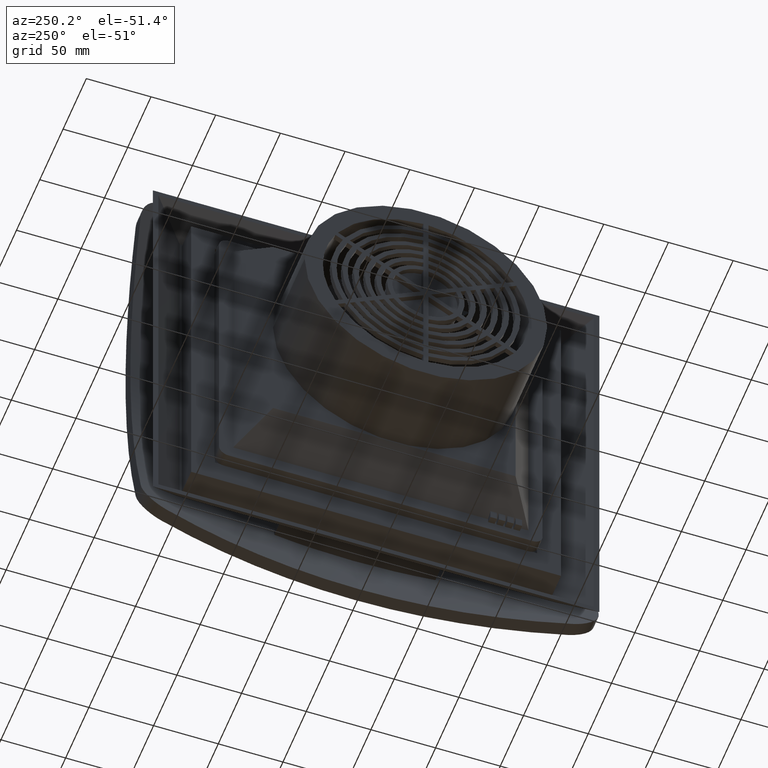
[diagram: clean part render]
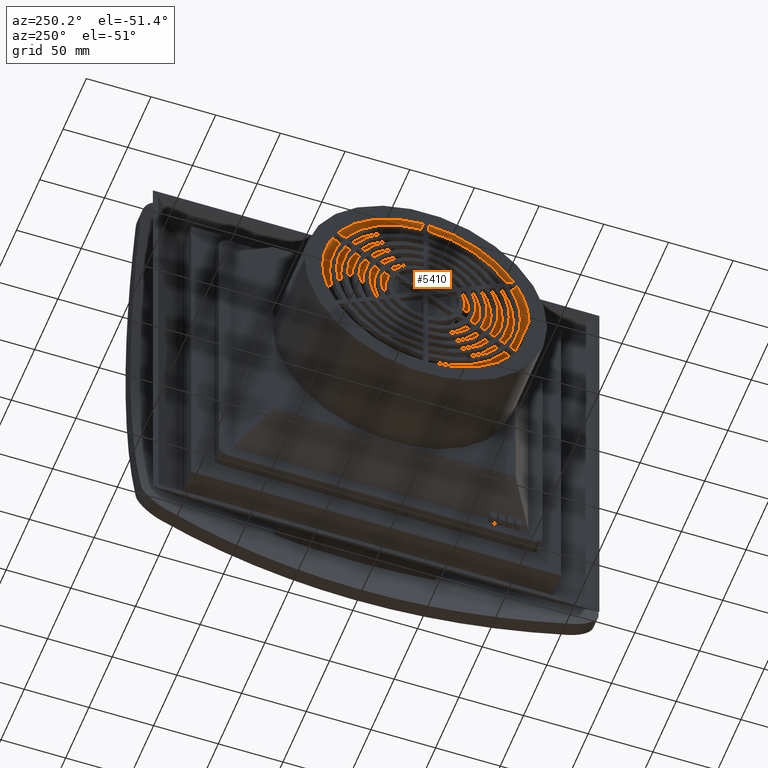
[diagram: same view with one face highlighted and labeled with its STEP entity id]
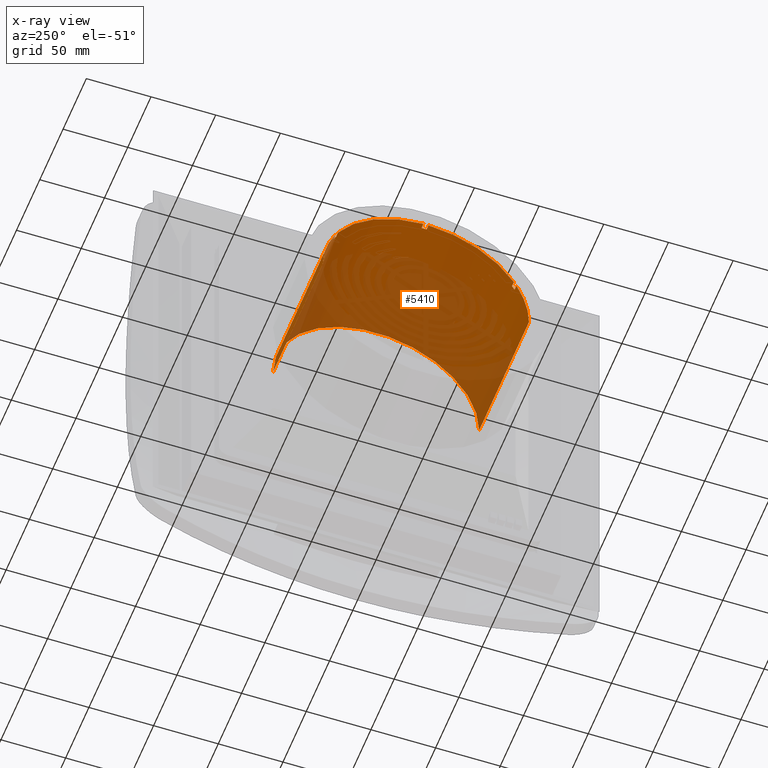
[diagram: x-ray of the same camera — body ghosted, the highlighted face saturated]
A machine part, auxiliary view. The second image highlights one B-rep face of the part: STEP entity #5410.
The next image is the same camera in x-ray: the body ghosted, the highlighted face saturated — about 60% of this face is hidden behind the body in this view.
In plain terms, the highlighted cylindrical surface (partial cylindrical patch) has radius 79.6875 mm, axis along (-1, 0, -0).
Its self-contained STEP definition (entity closure, byte-faithful):
#47 = EDGE_CURVE ( 'NONE', #208, #11461, #3389, .T. ) ;
#119 = CARTESIAN_POINT ( 'NONE',  ( 3.286904682269551315E-16, 3.137303149606299524, 3.842088260120264997E-16 ) ) ;
#154 = CARTESIAN_POINT ( 'NONE',  ( -2.106299212598425008, 3.137303149606299524, 2.552394560720713197E-16 ) ) ;
#177 = CIRCLE ( 'NONE', #6777, 3.137303149606299524 ) ;
#208 = VERTEX_POINT ( 'NONE', #8974 ) ;
#830 = ORIENTED_EDGE ( 'NONE', *, *, #9070, .F. ) ;
#878 = DIRECTION ( 'NONE',  ( 1.000000000000000000, -1.224606353822379970E-16, 6.123031769111889989E-17 ) ) ;
#884 = DIRECTION ( 'NONE',  ( 1.000000000000000000, -1.224606353822379970E-16, 6.123031769111889989E-17 ) ) ;
#1106 = ORIENTED_EDGE ( 'NONE', *, *, #12026, .F. ) ;
#1137 = EDGE_CURVE ( 'NONE', #6699, #5232, #13970, .T. ) ;
#1386 = AXIS2_PLACEMENT_3D ( 'NONE', #6720, #9345, #10373 ) ;
#1394 = ORIENTED_EDGE ( 'NONE', *, *, #1137, .F. ) ;
#1400 = EDGE_LOOP ( 'NONE', ( #8145, #15722, #13785, #12770, #11476, #3122, #1106, #13016, #13456, #10707, #1987, #6585, #1394, #14171, #1865, #830 ) ) ;
#1467 = DIRECTION ( 'NONE',  ( -1.000000000000000000, 1.224606353822379970E-16, -6.123031769111889989E-17 ) ) ;
#1510 = AXIS2_PLACEMENT_3D ( 'NONE', #15658, #7228, #7154 ) ;
#1528 = CARTESIAN_POINT ( 'NONE',  ( -4.212598425196850016, -0.07874015748031444606, 3.136314882171364893 ) ) ;
#1567 = EDGE_CURVE ( 'NONE', #5232, #208, #12856, .T. ) ;
#1865 = ORIENTED_EDGE ( 'NONE', *, *, #14821, .T. ) ;
#1987 = ORIENTED_EDGE ( 'NONE', *, *, #47, .F. ) ;
#2011 = LINE ( 'NONE', #11765, #15589 ) ;
#2057 = CARTESIAN_POINT ( 'NONE',  ( -2.106299212598425008, 2.755498440967758533, 1.499966464409741462 ) ) ;
#2212 = CARTESIAN_POINT ( 'NONE',  ( -4.212598425196850016, 5.158774797598209172E-16, -2.579387398799102614E-16 ) ) ;
#2226 = CARTESIAN_POINT ( 'NONE',  ( -4.055118110236221263, 4.965923403295472565E-16, -2.482961701647734310E-16 ) ) ;
#2239 = CARTESIAN_POINT ( 'NONE',  ( -4.212598425196850904, 5.158774797598210158E-16, -2.579387398799103107E-16 ) ) ;
#2425 = CARTESIAN_POINT ( 'NONE',  ( -2.106299212598425008, 2.676758283487442380, 1.636348417761623208 ) ) ;
#2598 = DIRECTION ( 'NONE',  ( -1.000000000000000000, 1.224606353822379970E-16, -6.123031769111889989E-17 ) ) ;
#3122 = ORIENTED_EDGE ( 'NONE', *, *, #13767, .F. ) ;
#3140 = DIRECTION ( 'NONE',  ( 1.000000000000000000, -1.224606353822379970E-16, 6.123031769111889989E-17 ) ) ;
#3218 = VERTEX_POINT ( 'NONE', #119 ) ;
#3353 = CARTESIAN_POINT ( 'NONE',  ( -2.106299212598425008, 2.579387398799102121E-16, -1.289693699399551060E-16 ) ) ;
#3360 = CARTESIAN_POINT ( 'NONE',  ( -4.055118110236221263, 0.07874015748031547302, 3.136314882171364893 ) ) ;
#3389 = CIRCLE ( 'NONE', #1510, 3.137303149606299524 ) ;
#3581 = DIRECTION ( 'NONE',  ( -1.224606353822379970E-16, -1.000000000000000000, 0.000000000000000000 ) ) ;
#3589 = VECTOR ( 'NONE', #15321, 39.37007874015748143 ) ;
#3628 = EDGE_CURVE ( 'NONE', #5761, #13140, #7104, .T. ) ;
#3639 = DIRECTION ( 'NONE',  ( 1.000000000000000000, -1.224606353822379970E-16, 6.123031769111889989E-17 ) ) ;
#3659 = CARTESIAN_POINT ( 'NONE',  ( -4.212598425196850904, 5.158774797598211144E-16, -2.579387398799103107E-16 ) ) ;
#3791 = CARTESIAN_POINT ( 'NONE',  ( -2.106299212598425452, -0.07874015748031458484, 3.136314882171365337 ) ) ;
#3817 = DIRECTION ( 'NONE',  ( 1.000000000000000000, -1.224606353822379970E-16, 6.123031769111889989E-17 ) ) ;
#3850 = LINE ( 'NONE', #2425, #10343 ) ;
#3921 = VERTEX_POINT ( 'NONE', #12008 ) ;
#4456 = LINE ( 'NONE', #154, #9775 ) ;
#4631 = DIRECTION ( 'NONE',  ( 1.000000000000000000, -1.224606353822379970E-16, 6.123031769111889989E-17 ) ) ;
#4697 = DIRECTION ( 'NONE',  ( -1.000000000000000000, 1.224606353822379970E-16, -6.123031769111889989E-17 ) ) ;
#4966 = AXIS2_PLACEMENT_3D ( 'NONE', #9618, #878, #3581 ) ;
#4974 = AXIS2_PLACEMENT_3D ( 'NONE', #3353, #4697, #7319 ) ;
#4981 = LINE ( 'NONE', #3791, #8494 ) ;
#5077 = VERTEX_POINT ( 'NONE', #12011 ) ;
#5172 = CARTESIAN_POINT ( 'NONE',  ( -4.212598425196850904, 3.137303149606299968, 1.262700861321161397E-16 ) ) ;
#5232 = VERTEX_POINT ( 'NONE', #15032 ) ;
#5410 = ADVANCED_FACE ( 'NONE', ( #10570 ), #9391, .F. ) ;
#5562 = AXIS2_PLACEMENT_3D ( 'NONE', #2226, #5802, #8581 ) ;
#5583 = AXIS2_PLACEMENT_3D ( 'NONE', #12907, #3140, #12824 ) ;
#5761 = VERTEX_POINT ( 'NONE', #10402 ) ;
#5802 = DIRECTION ( 'NONE',  ( 1.000000000000000000, -1.224606353822379970E-16, 6.123031769111889989E-17 ) ) ;
#5979 = LINE ( 'NONE', #7573, #8310 ) ;
#6500 = VERTEX_POINT ( 'NONE', #11684 ) ;
#6529 = CARTESIAN_POINT ( 'NONE',  ( -4.212598425196850016, -2.676758283487440604, 1.636348417761626095 ) ) ;
#6585 = ORIENTED_EDGE ( 'NONE', *, *, #1567, .F. ) ;
#6611 = CIRCLE ( 'NONE', #5583, 3.137303149606299524 ) ;
#6699 = VERTEX_POINT ( 'NONE', #5172 ) ;
#6720 = CARTESIAN_POINT ( 'NONE',  ( -4.055118110236221263, 4.965923403295473551E-16, -2.482961701647734803E-16 ) ) ;
#6777 = AXIS2_PLACEMENT_3D ( 'NONE', #2212, #3639, #8484 ) ;
#7104 = LINE ( 'NONE', #10905, #12760 ) ;
#7108 = CARTESIAN_POINT ( 'NONE',  ( -4.055118110236221263, -2.676758283487440604, 1.636348417761626095 ) ) ;
#7154 = DIRECTION ( 'NONE',  ( -1.741526313137500431E-16, -1.000000000000000000, 0.000000000000000000 ) ) ;
#7228 = DIRECTION ( 'NONE',  ( 1.000000000000000000, -1.224606353822379970E-16, 6.123031769111889989E-17 ) ) ;
#7319 = DIRECTION ( 'NONE',  ( -8.707631565687502157E-17, -1.000000000000000000, 0.000000000000000000 ) ) ;
#7461 = DIRECTION ( 'NONE',  ( -1.000000000000000000, 1.224606353822379970E-16, -6.123031769111889989E-17 ) ) ;
#7464 = DIRECTION ( 'NONE',  ( -1.741526313137500431E-16, -1.000000000000000000, 8.881784197001252323E-16 ) ) ;
#7573 = CARTESIAN_POINT ( 'NONE',  ( -2.106299212598425896, -2.755498440967756757, 1.499966464409744349 ) ) ;
#7929 = VERTEX_POINT ( 'NONE', #8262 ) ;
#8145 = ORIENTED_EDGE ( 'NONE', *, *, #9517, .F. ) ;
#8262 = CARTESIAN_POINT ( 'NONE',  ( -4.212598425196850016, -2.755498440967756757, 1.499966464409744127 ) ) ;
#8296 = EDGE_CURVE ( 'NONE', #11461, #9241, #3850, .T. ) ;
#8310 = VECTOR ( 'NONE', #10820, 39.37007874015748143 ) ;
#8484 = DIRECTION ( 'NONE',  ( -1.741526313137500431E-16, -1.000000000000000000, -1.776356839400250465E-15 ) ) ;
#8494 = VECTOR ( 'NONE', #2598, 39.37007874015748143 ) ;
#8581 = DIRECTION ( 'NONE',  ( -1.741526313137500431E-16, -1.000000000000000000, 2.131628207280300558E-14 ) ) ;
#8875 = VERTEX_POINT ( 'NONE', #1528 ) ;
#8974 = CARTESIAN_POINT ( 'NONE',  ( -4.055118110236221263, 2.755498440967758977, 1.499966464409741684 ) ) ;
#9070 = EDGE_CURVE ( 'NONE', #5077, #12906, #9844, .T. ) ;
#9085 = AXIS2_PLACEMENT_3D ( 'NONE', #3659, #3817, #7464 ) ;
#9241 = VERTEX_POINT ( 'NONE', #12384 ) ;
#9276 = CIRCLE ( 'NONE', #4966, 3.137303149606299524 ) ;
#9345 = DIRECTION ( 'NONE',  ( 1.000000000000000000, -1.224606353822379970E-16, 6.123031769111889989E-17 ) ) ;
#9391 = CYLINDRICAL_SURFACE ( 'NONE', #4974, 3.137303149606299524 ) ;
#9517 = EDGE_CURVE ( 'NONE', #7929, #5077, #177, .T. ) ;
#9618 = CARTESIAN_POINT ( 'NONE',  ( 0.000000000000000000, -5.156032921981576665E-31, 4.549440813513155688E-32 ) ) ;
#9660 = AXIS2_PLACEMENT_3D ( 'NONE', #2239, #884, #15504 ) ;
#9775 = VECTOR ( 'NONE', #7461, 39.37007874015748143 ) ;
#9844 = LINE ( 'NONE', #12148, #12584 ) ;
#9895 = EDGE_CURVE ( 'NONE', #3921, #7929, #5979, .T. ) ;
#10264 = EDGE_CURVE ( 'NONE', #9241, #5761, #14922, .T. ) ;
#10343 = VECTOR ( 'NONE', #1467, 39.37007874015748143 ) ;
#10373 = DIRECTION ( 'NONE',  ( -1.741526313137500431E-16, -1.000000000000000000, -6.217248937900876626E-15 ) ) ;
#10402 = CARTESIAN_POINT ( 'NONE',  ( -4.212598425196850904, 0.07874015748031538975, 3.136314882171364893 ) ) ;
#10570 = FACE_OUTER_BOUND ( 'NONE', #1400, .T. ) ;
#10707 = ORIENTED_EDGE ( 'NONE', *, *, #8296, .F. ) ;
#10820 = DIRECTION ( 'NONE',  ( -1.000000000000000000, 1.224606353822379970E-16, -6.123031769111889989E-17 ) ) ;
#10905 = CARTESIAN_POINT ( 'NONE',  ( -2.106299212598425452, 0.07874015748031540363, 3.136314882171365337 ) ) ;
#11066 = CARTESIAN_POINT ( 'NONE',  ( -3.286904682269551315E-16, -3.137303149606299524, 4.549440813513155688E-32 ) ) ;
#11143 = CIRCLE ( 'NONE', #5562, 3.137303149606299524 ) ;
#11461 = VERTEX_POINT ( 'NONE', #12821 ) ;
#11476 = ORIENTED_EDGE ( 'NONE', *, *, #12615, .F. ) ;
#11684 = CARTESIAN_POINT ( 'NONE',  ( -4.055118110236221263, -0.07874015748031441830, 3.136314882171364893 ) ) ;
#11765 = CARTESIAN_POINT ( 'NONE',  ( -2.106299212598425896, -2.676758283487440604, 1.636348417761626095 ) ) ;
#11940 = DIRECTION ( 'NONE',  ( 1.000000000000000000, -1.224606353822379970E-16, 6.123031769111889989E-17 ) ) ;
#12008 = CARTESIAN_POINT ( 'NONE',  ( -4.055118110236221263, -2.755498440967756757, 1.499966464409744127 ) ) ;
#12011 = CARTESIAN_POINT ( 'NONE',  ( -4.212598425196850016, -3.137303149606299080, -2.579387398799102614E-16 ) ) ;
#12026 = EDGE_CURVE ( 'NONE', #13140, #6500, #11143, .T. ) ;
#12148 = CARTESIAN_POINT ( 'NONE',  ( -2.106299212598425452, -3.137303149606299524, -1.289693699399551060E-16 ) ) ;
#12384 = CARTESIAN_POINT ( 'NONE',  ( -4.212598425196850904, 2.676758283487442824, 1.636348417761623208 ) ) ;
#12584 = VECTOR ( 'NONE', #14460, 39.37007874015748143 ) ;
#12615 = EDGE_CURVE ( 'NONE', #8875, #14684, #6611, .T. ) ;
#12753 = VERTEX_POINT ( 'NONE', #7108 ) ;
#12760 = VECTOR ( 'NONE', #11940, 39.37007874015748143 ) ;
#12770 = ORIENTED_EDGE ( 'NONE', *, *, #13073, .F. ) ;
#12821 = CARTESIAN_POINT ( 'NONE',  ( -4.055118110236221263, 2.676758283487442824, 1.636348417761623208 ) ) ;
#12824 = DIRECTION ( 'NONE',  ( -1.741526313137500431E-16, -1.000000000000000000, -1.776356839400250465E-15 ) ) ;
#12856 = LINE ( 'NONE', #2057, #3589 ) ;
#12906 = VERTEX_POINT ( 'NONE', #11066 ) ;
#12907 = CARTESIAN_POINT ( 'NONE',  ( -4.212598425196850016, 5.158774797598209172E-16, -2.579387398799102121E-16 ) ) ;
#13016 = ORIENTED_EDGE ( 'NONE', *, *, #3628, .F. ) ;
#13073 = EDGE_CURVE ( 'NONE', #14684, #12753, #2011, .T. ) ;
#13140 = VERTEX_POINT ( 'NONE', #3360 ) ;
#13456 = ORIENTED_EDGE ( 'NONE', *, *, #10264, .F. ) ;
#13767 = EDGE_CURVE ( 'NONE', #6500, #8875, #4981, .T. ) ;
#13785 = ORIENTED_EDGE ( 'NONE', *, *, #13886, .F. ) ;
#13886 = EDGE_CURVE ( 'NONE', #12753, #3921, #15343, .T. ) ;
#13970 = CIRCLE ( 'NONE', #9660, 3.137303149606299524 ) ;
#14171 = ORIENTED_EDGE ( 'NONE', *, *, #14839, .F. ) ;
#14460 = DIRECTION ( 'NONE',  ( 1.000000000000000000, -1.224606353822379970E-16, 6.123031769111889989E-17 ) ) ;
#14684 = VERTEX_POINT ( 'NONE', #6529 ) ;
#14821 = EDGE_CURVE ( 'NONE', #3218, #12906, #9276, .T. ) ;
#14839 = EDGE_CURVE ( 'NONE', #3218, #6699, #4456, .T. ) ;
#14922 = CIRCLE ( 'NONE', #9085, 3.137303149606299524 ) ;
#15032 = CARTESIAN_POINT ( 'NONE',  ( -4.212598425196850904, 2.755498440967758977, 1.499966464409741684 ) ) ;
#15321 = DIRECTION ( 'NONE',  ( 1.000000000000000000, -1.224606353822379970E-16, 6.123031769111889989E-17 ) ) ;
#15343 = CIRCLE ( 'NONE', #1386, 3.137303149606299524 ) ;
#15504 = DIRECTION ( 'NONE',  ( -1.741526313137500431E-16, -1.000000000000000000, 0.000000000000000000 ) ) ;
#15589 = VECTOR ( 'NONE', #4631, 39.37007874015748143 ) ;
#15658 = CARTESIAN_POINT ( 'NONE',  ( -4.055118110236221263, 4.965923403295473551E-16, -2.482961701647734803E-16 ) ) ;
#15722 = ORIENTED_EDGE ( 'NONE', *, *, #9895, .F. ) ;